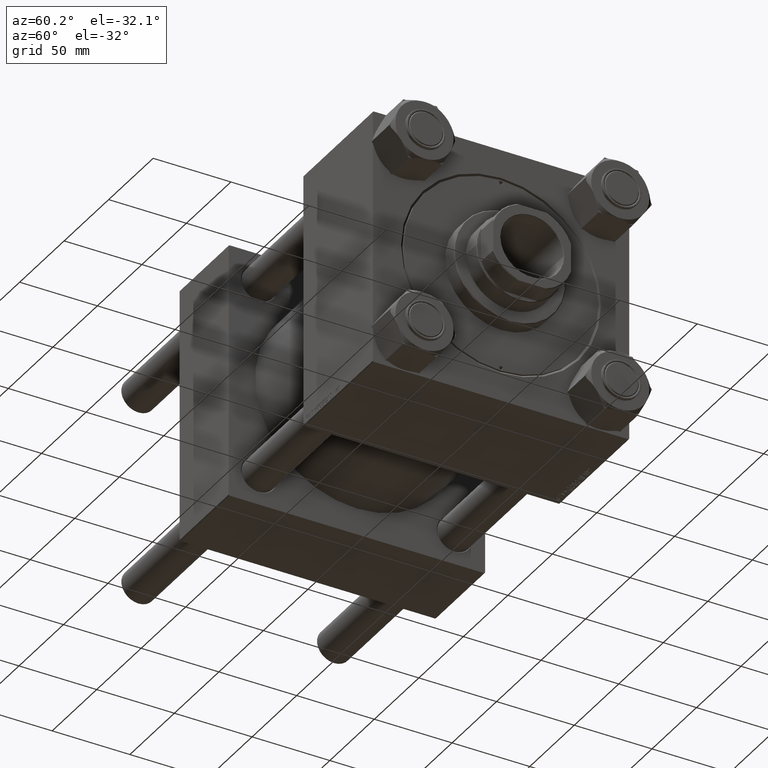
[diagram: clean part render]
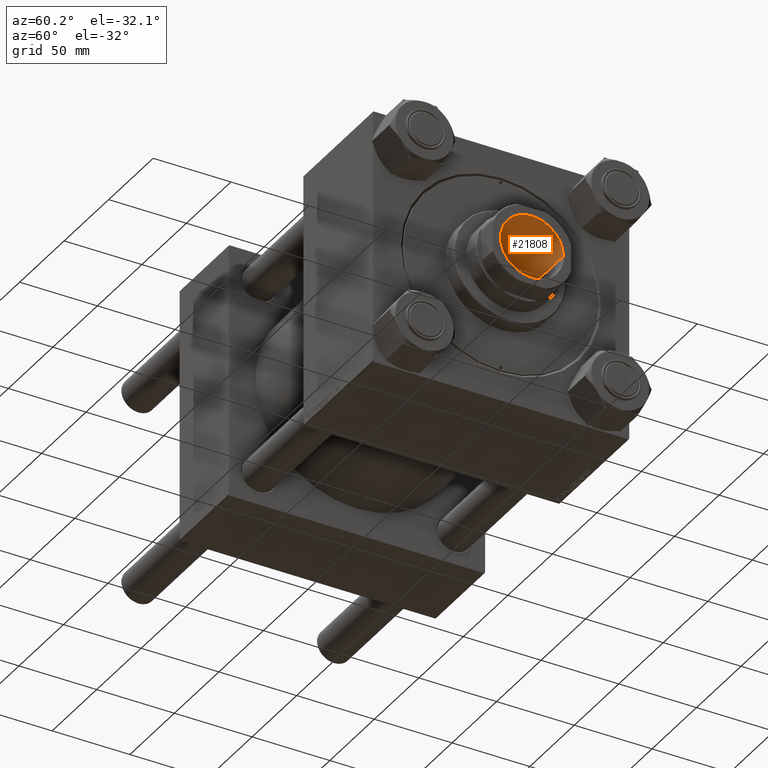
[diagram: same view with one face highlighted and labeled with its STEP entity id]
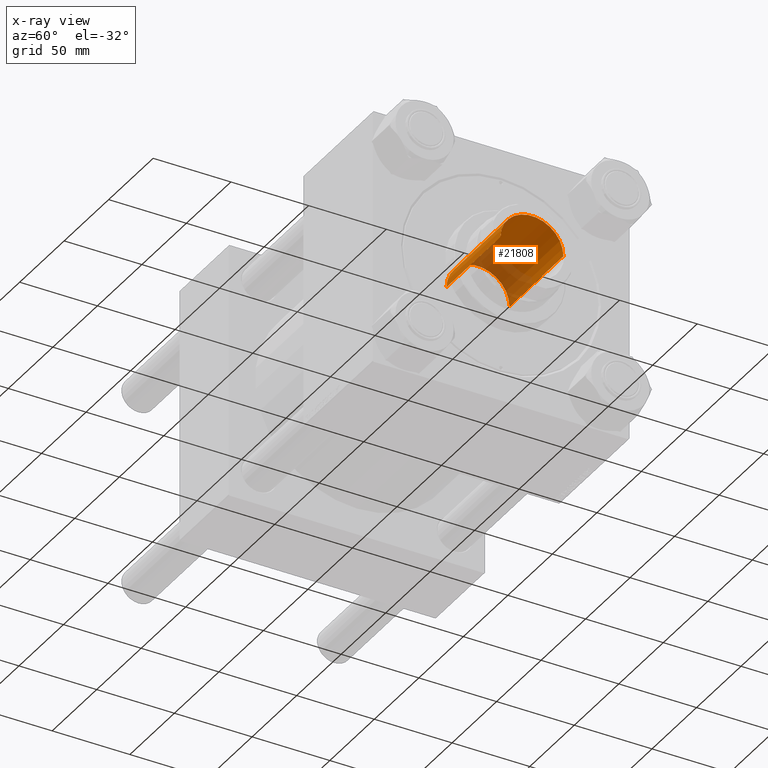
[diagram: x-ray of the same camera — body ghosted, the highlighted face saturated]
A machine part, auxiliary view. The second image highlights one B-rep face of the part: STEP entity #21808.
The next image is the same camera in x-ray: the body ghosted, the highlighted face saturated — about 30% of this face is hidden behind the body in this view.
In plain terms, the highlighted cylindrical surface (edge-blend (fillet) strip) has radius 20.25 mm, axis along (1, 0, -0).
Its self-contained STEP definition (entity closure, byte-faithful):
#225 = LINE ( 'NONE', #46915, #36612 ) ;
#1573 = AXIS2_PLACEMENT_3D ( 'NONE', #12537, #28078, #11786 ) ;
#2983 = CYLINDRICAL_SURFACE ( 'NONE', #37778, 20.24999999999999289 ) ;
#5894 = CARTESIAN_POINT ( 'NONE',  ( 20.24999999999999289, 0.000000000000000000, 197.0000000000000000 ) ) ;
#9034 = EDGE_CURVE ( 'NONE', #42252, #29459, #32685, .T. ) ;
#11786 = DIRECTION ( 'NONE',  ( 1.000000000000000000, 0.000000000000000000, 0.000000000000000000 ) ) ;
#11924 = ORIENTED_EDGE ( 'NONE', *, *, #9034, .F. ) ;
#12088 = EDGE_CURVE ( 'NONE', #34803, #32857, #225, .T. ) ;
#12537 = CARTESIAN_POINT ( 'NONE',  ( 0.000000000000000000, 0.000000000000000000, 196.7000000000001023 ) ) ;
#13740 = CARTESIAN_POINT ( 'NONE',  ( 20.24999999999999289, 0.000000000000000000, 196.7000000000001023 ) ) ;
#13784 = CIRCLE ( 'NONE', #1573, 20.24999999999999289 ) ;
#14290 = EDGE_CURVE ( 'NONE', #34803, #42252, #30999, .T. ) ;
#14662 = VECTOR ( 'NONE', #36005, 1000.000000000000000 ) ;
#18887 = EDGE_LOOP ( 'NONE', ( #41749, #27427, #40391, #11924 ) ) ;
#19366 = DIRECTION ( 'NONE',  ( -0.000000000000000000, -0.000000000000000000, 1.000000000000000000 ) ) ;
#21808 = ADVANCED_FACE ( 'NONE', ( #33360 ), #2983, .F. ) ;
#22441 = CARTESIAN_POINT ( 'NONE',  ( -20.24999999999999289, 2.479909768273389511E-15, 196.7000000000001023 ) ) ;
#22621 = DIRECTION ( 'NONE',  ( 1.000000000000000000, 0.000000000000000000, 0.000000000000000000 ) ) ;
#25697 = DIRECTION ( 'NONE',  ( -0.000000000000000000, -0.000000000000000000, 1.000000000000000000 ) ) ;
#25975 = CARTESIAN_POINT ( 'NONE',  ( 0.000000000000000000, 0.000000000000000000, 136.0000000000000000 ) ) ;
#26561 = CARTESIAN_POINT ( 'NONE',  ( 20.24999999999998934, 0.000000000000000000, 136.0000000000000000 ) ) ;
#27427 = ORIENTED_EDGE ( 'NONE', *, *, #12088, .T. ) ;
#27489 = CARTESIAN_POINT ( 'NONE',  ( -20.24999999999998934, 2.479909768273389117E-15, 136.0000000000000000 ) ) ;
#28078 = DIRECTION ( 'NONE',  ( 0.000000000000000000, 0.000000000000000000, 1.000000000000000000 ) ) ;
#29355 = AXIS2_PLACEMENT_3D ( 'NONE', #25975, #42062, #30564 ) ;
#29459 = VERTEX_POINT ( 'NONE', #13740 ) ;
#30564 = DIRECTION ( 'NONE',  ( 1.000000000000000000, 0.000000000000000000, 0.000000000000000000 ) ) ;
#30999 = CIRCLE ( 'NONE', #29355, 20.24999999999998934 ) ;
#32600 = EDGE_CURVE ( 'NONE', #32857, #29459, #13784, .T. ) ;
#32685 = LINE ( 'NONE', #5894, #14662 ) ;
#32857 = VERTEX_POINT ( 'NONE', #22441 ) ;
#33360 = FACE_OUTER_BOUND ( 'NONE', #18887, .T. ) ;
#34803 = VERTEX_POINT ( 'NONE', #27489 ) ;
#36005 = DIRECTION ( 'NONE',  ( -0.000000000000000000, -0.000000000000000000, 1.000000000000000000 ) ) ;
#36612 = VECTOR ( 'NONE', #19366, 1000.000000000000000 ) ;
#37778 = AXIS2_PLACEMENT_3D ( 'NONE', #49425, #25697, #22621 ) ;
#40391 = ORIENTED_EDGE ( 'NONE', *, *, #32600, .T. ) ;
#41749 = ORIENTED_EDGE ( 'NONE', *, *, #14290, .F. ) ;
#42062 = DIRECTION ( 'NONE',  ( -0.000000000000000000, -0.000000000000000000, 1.000000000000000000 ) ) ;
#42252 = VERTEX_POINT ( 'NONE', #26561 ) ;
#46915 = CARTESIAN_POINT ( 'NONE',  ( -20.24999999999999289, 2.479909768273389511E-15, 197.0000000000000000 ) ) ;
#49425 = CARTESIAN_POINT ( 'NONE',  ( 0.000000000000000000, 0.000000000000000000, 197.0000000000000000 ) ) ;